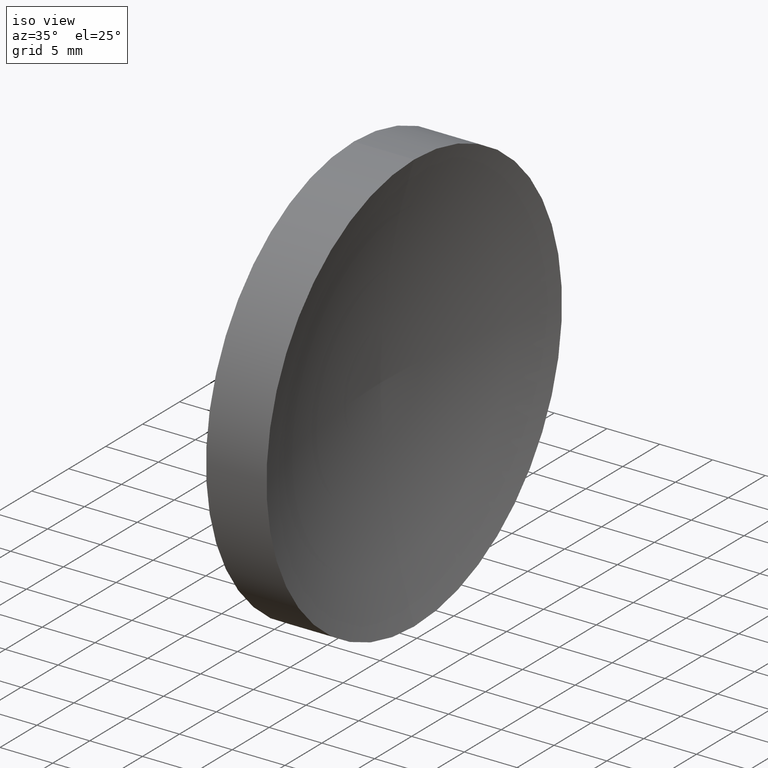
[diagram: clean part render]
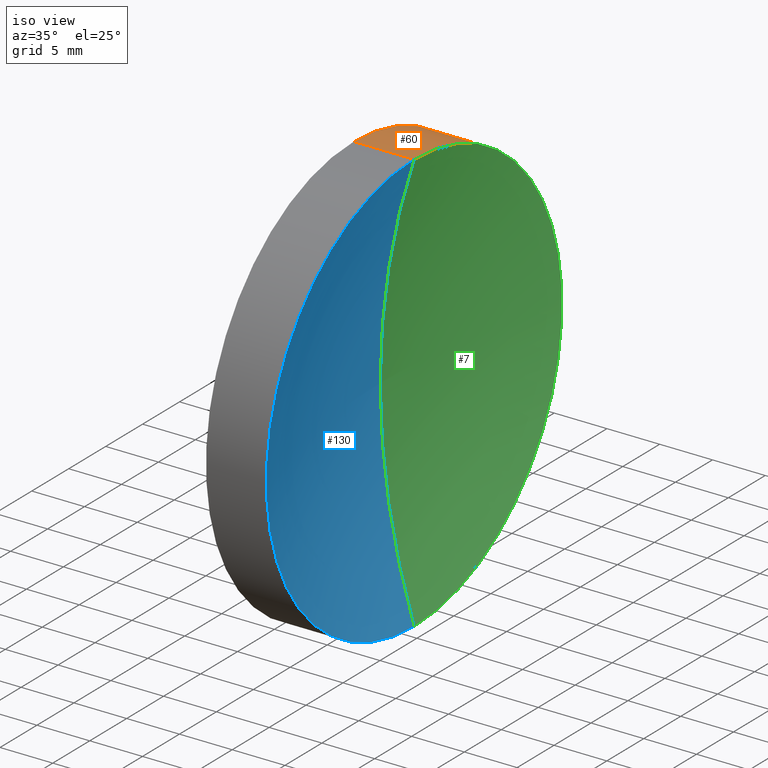
[diagram: same view with three faces highlighted in distinct colors, each labeled with its STEP entity id]
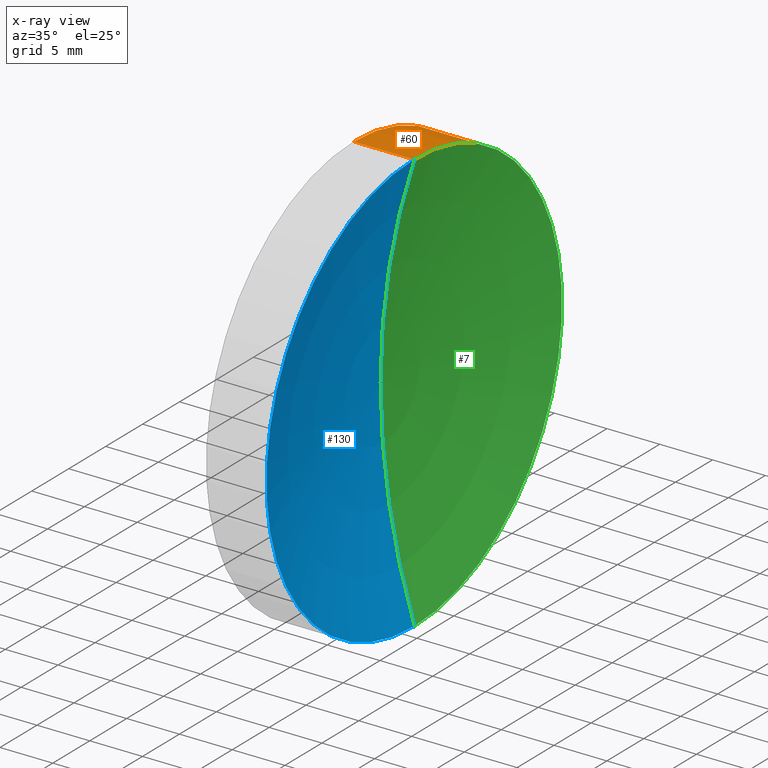
[diagram: x-ray of the same camera — body ghosted, the three highlighted faces saturated]
A machine part, iso view with three faces highlighted in distinct colors.
The next image is the same camera in x-ray (body ghosted, the three faces saturated) — at least one of them is partly hidden behind the body in this view.
Their STEP definitions:

[orange] entity #60 — the highlighted cylindrical surface (partial cylindrical patch) has radius 20 mm, axis along (-1, -0, -0).
#3 = CARTESIAN_POINT ( 'NONE',  ( 105.6218371238301200, 65.15563045701519200, 20.00000000000000400 ) ) ;
#8 = DIRECTION ( 'NONE',  ( 0.0000000000000000000, 0.0000000000000000000, 1.000000000000000000 ) ) ;
#9 = VERTEX_POINT ( 'NONE', #75 ) ;
#13 = VECTOR ( 'NONE', #105, 1000.000000000000000 ) ;
#14 = ORIENTED_EDGE ( 'NONE', *, *, #93, .F. ) ;
#17 = DIRECTION ( 'NONE',  ( 0.0000000000000000000, 0.0000000000000000000, 1.000000000000000000 ) ) ;
#20 = DIRECTION ( 'NONE',  ( -1.000000000000000000, -0.0000000000000000000, -0.0000000000000000000 ) ) ;
#25 = CARTESIAN_POINT ( 'NONE',  ( 105.6218371238301200, 65.15563045701519200, -20.00000000000000400 ) ) ;
#29 = VERTEX_POINT ( 'NONE', #50 ) ;
#32 = ORIENTED_EDGE ( 'NONE', *, *, #89, .F. ) ;
#36 = CARTESIAN_POINT ( 'NONE',  ( 113.9119316741596200, 65.15563045701519200, 0.0000000000000000000 ) ) ;
#38 = CARTESIAN_POINT ( 'NONE',  ( 119.6382000225837700, 65.15563045701519200, 0.0000000000000000000 ) ) ;
#43 = FACE_OUTER_BOUND ( 'NONE', #64, .T. ) ;
#45 = CIRCLE ( 'NONE', #116, 20.00000000000000400 ) ;
#50 = CARTESIAN_POINT ( 'NONE',  ( 119.6382000225837700, 65.15563045701519200, 20.00000000000000400 ) ) ;
#55 = ORIENTED_EDGE ( 'NONE', *, *, #113, .T. ) ;
#60 = ADVANCED_FACE ( 'NONE', ( #43 ), #109, .T. ) ;
#62 = VERTEX_POINT ( 'NONE', #125 ) ;
#63 = DIRECTION ( 'NONE',  ( -1.000000000000000000, -0.0000000000000000000, -0.0000000000000000000 ) ) ;
#64 = EDGE_LOOP ( 'NONE', ( #137, #55, #14, #32 ) ) ;
#75 = CARTESIAN_POINT ( 'NONE',  ( 119.6382000225837700, 65.15563045701519200, -20.00000000000000400 ) ) ;
#81 = CIRCLE ( 'NONE', #88, 20.00000000000000400 ) ;
#88 = AXIS2_PLACEMENT_3D ( 'NONE', #36, #20, #120 ) ;
#89 = EDGE_CURVE ( 'NONE', #29, #95, #151, .T. ) ;
#93 = EDGE_CURVE ( 'NONE', #95, #62, #81, .T. ) ;
#95 = VERTEX_POINT ( 'NONE', #159 ) ;
#105 = DIRECTION ( 'NONE',  ( -1.000000000000000000, -0.0000000000000000000, -0.0000000000000000000 ) ) ;
#109 = CYLINDRICAL_SURFACE ( 'NONE', #148, 20.00000000000000400 ) ;
#113 = EDGE_CURVE ( 'NONE', #9, #62, #154, .T. ) ;
#116 = AXIS2_PLACEMENT_3D ( 'NONE', #38, #134, #17 ) ;
#117 = VECTOR ( 'NONE', #161, 1000.000000000000000 ) ;
#120 = DIRECTION ( 'NONE',  ( 0.0000000000000000000, 0.0000000000000000000, 1.000000000000000000 ) ) ;
#125 = CARTESIAN_POINT ( 'NONE',  ( 113.9119316741596200, 65.15563045701519200, -20.00000000000000400 ) ) ;
#134 = DIRECTION ( 'NONE',  ( -1.000000000000000000, -0.0000000000000000000, -0.0000000000000000000 ) ) ;
#137 = ORIENTED_EDGE ( 'NONE', *, *, #142, .T. ) ;
#142 = EDGE_CURVE ( 'NONE', #29, #9, #45, .T. ) ;
#148 = AXIS2_PLACEMENT_3D ( 'NONE', #152, #63, #8 ) ;
#151 = LINE ( 'NONE', #3, #13 ) ;
#152 = CARTESIAN_POINT ( 'NONE',  ( 105.6218371238301200, 65.15563045701519200, 0.0000000000000000000 ) ) ;
#154 = LINE ( 'NONE', #25, #117 ) ;
#159 = CARTESIAN_POINT ( 'NONE',  ( 113.9119316741596200, 65.15563045701519200, 20.00000000000000400 ) ) ;
#161 = DIRECTION ( 'NONE',  ( -1.000000000000000000, -0.0000000000000000000, -0.0000000000000000000 ) ) ;

[blue] entity #130 — the highlighted toroidal blend (fillet) surface has major radius 0.1525 mm and minor (blend) radius 64.55 mm.
#2 = ORIENTED_EDGE ( 'NONE', *, *, #83, .F. ) ;
#4 = DIRECTION ( 'NONE',  ( 0.0000000000000000000, -1.000000000000000000, 0.0000000000000000000 ) ) ;
#9 = VERTEX_POINT ( 'NONE', #75 ) ;
#19 = CARTESIAN_POINT ( 'NONE',  ( 180.9617514573222900, 65.15563045701519200, -0.1525318367439215700 ) ) ;
#21 = FACE_OUTER_BOUND ( 'NONE', #94, .T. ) ;
#29 = VERTEX_POINT ( 'NONE', #50 ) ;
#40 = VERTEX_POINT ( 'NONE', #108 ) ;
#50 = CARTESIAN_POINT ( 'NONE',  ( 119.6382000225837700, 65.15563045701519200, 20.00000000000000400 ) ) ;
#53 = AXIS2_PLACEMENT_3D ( 'NONE', #19, #4, #104 ) ;
#57 = DIRECTION ( 'NONE',  ( -0.0000000000000000000, 1.000000000000000000, 1.224646799147353200E-016 ) ) ;
#61 = CARTESIAN_POINT ( 'NONE',  ( 180.9617514573222900, 65.15563045701519200, 0.0000000000000000000 ) ) ;
#66 = CIRCLE ( 'NONE', #53, 64.54999999999999700 ) ;
#69 = CIRCLE ( 'NONE', #78, 64.54999999999999700 ) ;
#75 = CARTESIAN_POINT ( 'NONE',  ( 119.6382000225837700, 65.15563045701519200, -20.00000000000000400 ) ) ;
#78 = AXIS2_PLACEMENT_3D ( 'NONE', #101, #57, #123 ) ;
#79 = EDGE_CURVE ( 'NONE', #9, #40, #69, .T. ) ;
#82 = AXIS2_PLACEMENT_3D ( 'NONE', #91, #133, #131 ) ;
#83 = EDGE_CURVE ( 'NONE', #29, #40, #66, .T. ) ;
#85 = TOROIDAL_SURFACE ( 'NONE', #158, -0.1525318367439215700, 64.54999999999999700 ) ;
#91 = CARTESIAN_POINT ( 'NONE',  ( 119.6382000225837700, 65.15563045701519200, 0.0000000000000000000 ) ) ;
#94 = EDGE_LOOP ( 'NONE', ( #110, #139, #2 ) ) ;
#97 = EDGE_CURVE ( 'NONE', #9, #29, #124, .T. ) ;
#101 = CARTESIAN_POINT ( 'NONE',  ( 180.9617514573222900, 65.15563045701519200, 0.1525318367439215700 ) ) ;
#104 = DIRECTION ( 'NONE',  ( 0.0000000000000000000, 0.0000000000000000000, -1.000000000000000000 ) ) ;
#108 = CARTESIAN_POINT ( 'NONE',  ( 116.4119316741596300, 65.15563045701519200, 0.0000000000000000000 ) ) ;
#110 = ORIENTED_EDGE ( 'NONE', *, *, #97, .F. ) ;
#123 = DIRECTION ( 'NONE',  ( 0.0000000000000000000, -2.149928397802394700E-016, 1.000000000000000000 ) ) ;
#124 = CIRCLE ( 'NONE', #82, 20.00000000000000400 ) ;
#130 = ADVANCED_FACE ( 'NONE', ( #21 ), #85, .F. ) ;
#131 = DIRECTION ( 'NONE',  ( 0.0000000000000000000, 0.0000000000000000000, 1.000000000000000000 ) ) ;
#133 = DIRECTION ( 'NONE',  ( -1.000000000000000000, -0.0000000000000000000, -0.0000000000000000000 ) ) ;
#139 = ORIENTED_EDGE ( 'NONE', *, *, #79, .T. ) ;
#145 = DIRECTION ( 'NONE',  ( -1.000000000000000000, -0.0000000000000000000, -0.0000000000000000000 ) ) ;
#158 = AXIS2_PLACEMENT_3D ( 'NONE', #61, #145, #160 ) ;
#160 = DIRECTION ( 'NONE',  ( 0.0000000000000000000, 0.0000000000000000000, 1.000000000000000000 ) ) ;

[green] entity #7 — the highlighted toroidal blend (fillet) surface has major radius 0.1525 mm and minor (blend) radius 64.55 mm.
#4 = DIRECTION ( 'NONE',  ( 0.0000000000000000000, -1.000000000000000000, 0.0000000000000000000 ) ) ;
#7 = ADVANCED_FACE ( 'NONE', ( #31 ), #39, .F. ) ;
#9 = VERTEX_POINT ( 'NONE', #75 ) ;
#10 = DIRECTION ( 'NONE',  ( 0.0000000000000000000, 0.0000000000000000000, 1.000000000000000000 ) ) ;
#15 = ORIENTED_EDGE ( 'NONE', *, *, #79, .F. ) ;
#17 = DIRECTION ( 'NONE',  ( 0.0000000000000000000, 0.0000000000000000000, 1.000000000000000000 ) ) ;
#19 = CARTESIAN_POINT ( 'NONE',  ( 180.9617514573222900, 65.15563045701519200, -0.1525318367439215700 ) ) ;
#28 = CARTESIAN_POINT ( 'NONE',  ( 180.9617514573222900, 65.15563045701519200, 0.0000000000000000000 ) ) ;
#29 = VERTEX_POINT ( 'NONE', #50 ) ;
#31 = FACE_OUTER_BOUND ( 'NONE', #67, .T. ) ;
#38 = CARTESIAN_POINT ( 'NONE',  ( 119.6382000225837700, 65.15563045701519200, 0.0000000000000000000 ) ) ;
#39 = TOROIDAL_SURFACE ( 'NONE', #54, -0.1525318367439215700, 64.54999999999999700 ) ;
#40 = VERTEX_POINT ( 'NONE', #108 ) ;
#45 = CIRCLE ( 'NONE', #116, 20.00000000000000400 ) ;
#50 = CARTESIAN_POINT ( 'NONE',  ( 119.6382000225837700, 65.15563045701519200, 20.00000000000000400 ) ) ;
#53 = AXIS2_PLACEMENT_3D ( 'NONE', #19, #4, #104 ) ;
#54 = AXIS2_PLACEMENT_3D ( 'NONE', #28, #126, #10 ) ;
#57 = DIRECTION ( 'NONE',  ( -0.0000000000000000000, 1.000000000000000000, 1.224646799147353200E-016 ) ) ;
#66 = CIRCLE ( 'NONE', #53, 64.54999999999999700 ) ;
#67 = EDGE_LOOP ( 'NONE', ( #15, #119, #70 ) ) ;
#69 = CIRCLE ( 'NONE', #78, 64.54999999999999700 ) ;
#70 = ORIENTED_EDGE ( 'NONE', *, *, #83, .T. ) ;
#75 = CARTESIAN_POINT ( 'NONE',  ( 119.6382000225837700, 65.15563045701519200, -20.00000000000000400 ) ) ;
#78 = AXIS2_PLACEMENT_3D ( 'NONE', #101, #57, #123 ) ;
#79 = EDGE_CURVE ( 'NONE', #9, #40, #69, .T. ) ;
#83 = EDGE_CURVE ( 'NONE', #29, #40, #66, .T. ) ;
#101 = CARTESIAN_POINT ( 'NONE',  ( 180.9617514573222900, 65.15563045701519200, 0.1525318367439215700 ) ) ;
#104 = DIRECTION ( 'NONE',  ( 0.0000000000000000000, 0.0000000000000000000, -1.000000000000000000 ) ) ;
#108 = CARTESIAN_POINT ( 'NONE',  ( 116.4119316741596300, 65.15563045701519200, 0.0000000000000000000 ) ) ;
#116 = AXIS2_PLACEMENT_3D ( 'NONE', #38, #134, #17 ) ;
#119 = ORIENTED_EDGE ( 'NONE', *, *, #142, .F. ) ;
#123 = DIRECTION ( 'NONE',  ( 0.0000000000000000000, -2.149928397802394700E-016, 1.000000000000000000 ) ) ;
#126 = DIRECTION ( 'NONE',  ( -1.000000000000000000, -0.0000000000000000000, -0.0000000000000000000 ) ) ;
#134 = DIRECTION ( 'NONE',  ( -1.000000000000000000, -0.0000000000000000000, -0.0000000000000000000 ) ) ;
#142 = EDGE_CURVE ( 'NONE', #29, #9, #45, .T. ) ;